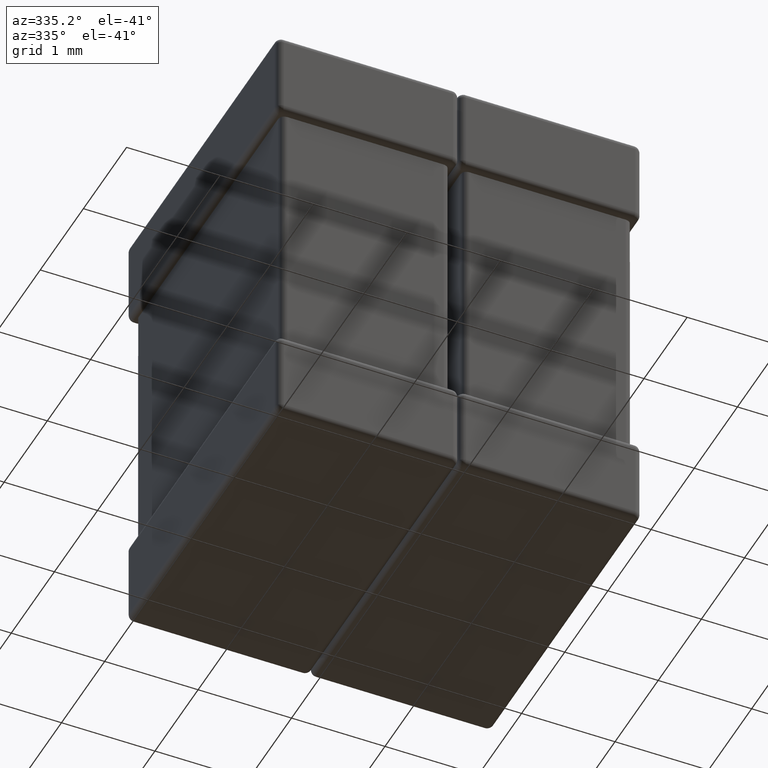
[diagram: clean part render]
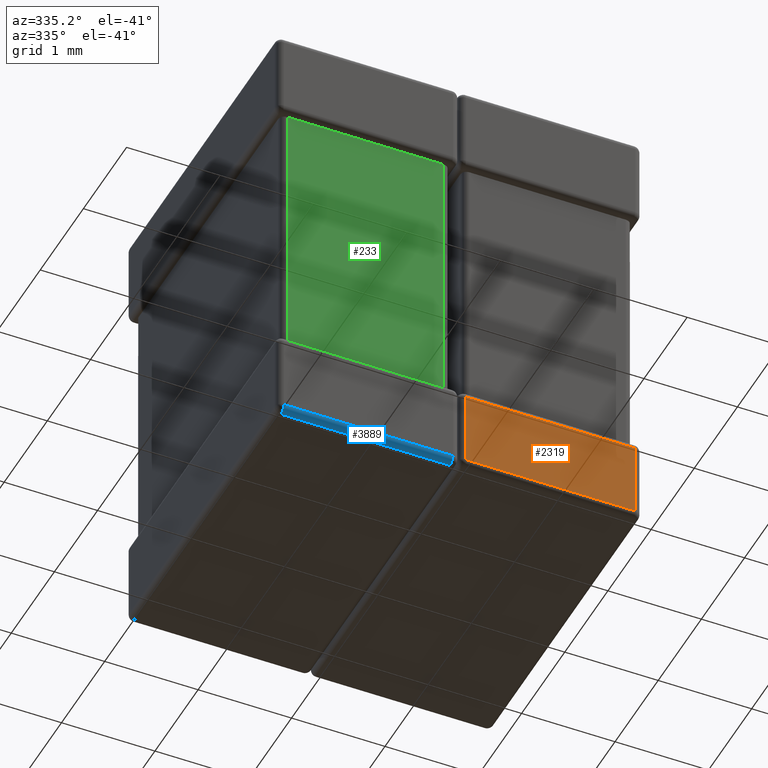
[diagram: same view with three faces highlighted in distinct colors, each labeled with its STEP entity id]
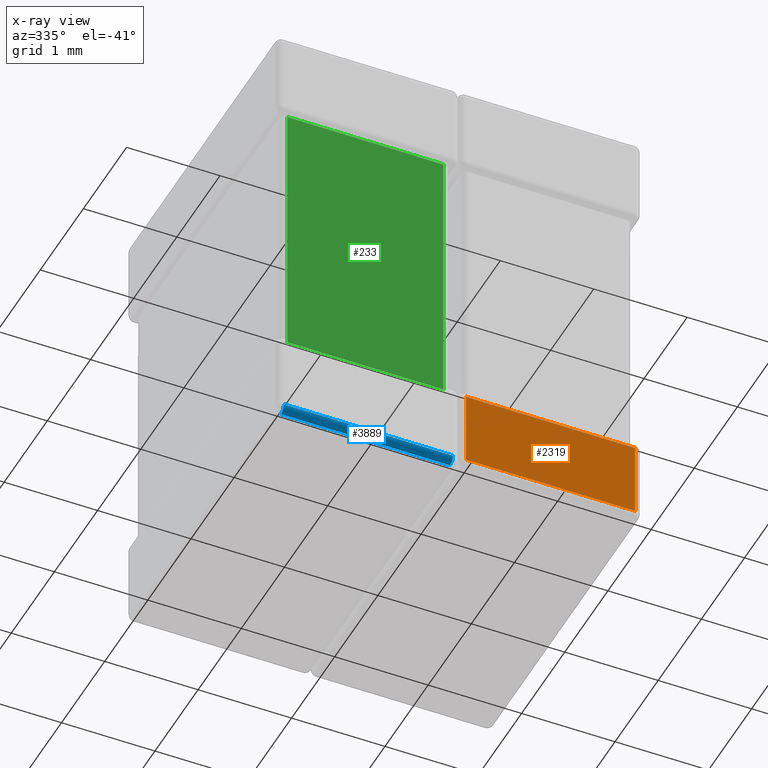
[diagram: x-ray of the same camera — body ghosted, the three highlighted faces saturated]
A machine part, auxiliary view with three faces highlighted in distinct colors.
The next image is the same camera in x-ray (body ghosted, the three faces saturated) — at least one of them is partly hidden behind the body in this view.
Their STEP definitions:

[orange] entity #2319 — the highlighted planar face has unit normal (0, -1, 0).
#8 = CARTESIAN_POINT ( 'NONE',  ( 2.020000000000000018, 2.414409817907970416E-16, -4.799999999999999822 ) ) ;
#726 = LINE ( 'NONE', #776, #5882 ) ;
#776 = CARTESIAN_POINT ( 'NONE',  ( 1.949999999999999956, 2.414409817907970416E-16, -4.729999999999999538 ) ) ;
#990 = ORIENTED_EDGE ( 'NONE', *, *, #4776, .T. ) ;
#1700 = VERTEX_POINT ( 'NONE', #3797 ) ;
#1996 = VECTOR ( 'NONE', #8103, 1000.000000000000000 ) ;
#2000 = DIRECTION ( 'NONE',  ( -1.000000000000000000, 0.000000000000000000, 3.070679120515356373E-30 ) ) ;
#2157 = ORIENTED_EDGE ( 'NONE', *, *, #3173, .T. ) ;
#2295 = VERTEX_POINT ( 'NONE', #2994 ) ;
#2319 = ADVANCED_FACE ( 'NONE', ( #5745 ), #8546, .T. ) ;
#2333 = EDGE_CURVE ( 'NONE', #2295, #8065, #2490, .T. ) ;
#2490 = LINE ( 'NONE', #3996, #7548 ) ;
#2994 = CARTESIAN_POINT ( 'NONE',  ( 3.829999999999999627, 2.414409817907970416E-16, -3.920000000000041673 ) ) ;
#3173 = EDGE_CURVE ( 'NONE', #8065, #1700, #5979, .T. ) ;
#3275 = CARTESIAN_POINT ( 'NONE',  ( 1.949999999999999956, 2.414409817907970416E-16, -4.799999999999999822 ) ) ;
#3330 = CARTESIAN_POINT ( 'NONE',  ( 3.829999999999999627, 2.414409817907970416E-16, -4.799999999999999822 ) ) ;
#3797 = CARTESIAN_POINT ( 'NONE',  ( 2.020000000000000018, 2.414409817907970416E-16, -4.729999999999999538 ) ) ;
#3996 = CARTESIAN_POINT ( 'NONE',  ( 1.949999999999999956, 2.414409817907970416E-16, -3.920000000000041673 ) ) ;
#4036 = VERTEX_POINT ( 'NONE', #5339 ) ;
#4539 = VECTOR ( 'NONE', #8044, 1000.000000000000000 ) ;
#4667 = DIRECTION ( 'NONE',  ( 0.000000000000000000, -1.000000000000000000, 0.000000000000000000 ) ) ;
#4776 = EDGE_CURVE ( 'NONE', #4036, #2295, #5388, .T. ) ;
#5181 = EDGE_CURVE ( 'NONE', #1700, #4036, #726, .T. ) ;
#5339 = CARTESIAN_POINT ( 'NONE',  ( 3.829999999999999627, 2.414409817907970416E-16, -4.729999999999999538 ) ) ;
#5388 = LINE ( 'NONE', #3330, #1996 ) ;
#5420 = DIRECTION ( 'NONE',  ( 0.000000000000000000, -0.000000000000000000, -1.000000000000000000 ) ) ;
#5745 = FACE_OUTER_BOUND ( 'NONE', #6662, .T. ) ;
#5882 = VECTOR ( 'NONE', #6125, 1000.000000000000000 ) ;
#5979 = LINE ( 'NONE', #8, #4539 ) ;
#6123 = AXIS2_PLACEMENT_3D ( 'NONE', #3275, #4667, #5420 ) ;
#6125 = DIRECTION ( 'NONE',  ( 1.000000000000000000, 0.000000000000000000, 0.000000000000000000 ) ) ;
#6662 = EDGE_LOOP ( 'NONE', ( #990, #8338, #2157, #6725 ) ) ;
#6725 = ORIENTED_EDGE ( 'NONE', *, *, #5181, .T. ) ;
#6789 = CARTESIAN_POINT ( 'NONE',  ( 2.020000000000000018, 2.414409817907970416E-16, -3.920000000000041673 ) ) ;
#7548 = VECTOR ( 'NONE', #2000, 1000.000000000000000 ) ;
#8044 = DIRECTION ( 'NONE',  ( -0.000000000000000000, -0.000000000000000000, -1.000000000000000000 ) ) ;
#8065 = VERTEX_POINT ( 'NONE', #6789 ) ;
#8103 = DIRECTION ( 'NONE',  ( 0.000000000000000000, 0.000000000000000000, 1.000000000000000000 ) ) ;
#8338 = ORIENTED_EDGE ( 'NONE', *, *, #2333, .T. ) ;
#8546 = PLANE ( 'NONE',  #6123 ) ;

[blue] entity #3889 — the highlighted cylindrical surface (edge-blend (fillet) strip) has radius 0.07 mm, axis along (1, 0, 0).
#72 = DIRECTION ( 'NONE',  ( 1.000000000000000000, 0.000000000000000000, 0.000000000000000000 ) ) ;
#418 = VECTOR ( 'NONE', #4256, 1000.000000000000000 ) ;
#704 = CIRCLE ( 'NONE', #6967, 0.06999999999999975686 ) ;
#785 = CARTESIAN_POINT ( 'NONE',  ( 0.06999999999999999278, 0.000000000000000000, -4.729999999999999538 ) ) ;
#1442 = LINE ( 'NONE', #5619, #418 ) ;
#1640 = CARTESIAN_POINT ( 'NONE',  ( 0.06999999999999999278, 0.07000000000000000666, -4.729999999999999538 ) ) ;
#1657 = VERTEX_POINT ( 'NONE', #2309 ) ;
#1736 = CARTESIAN_POINT ( 'NONE',  ( 1.879999999999999671, 0.000000000000000000, -4.729999999999999538 ) ) ;
#1910 = VERTEX_POINT ( 'NONE', #3610 ) ;
#2309 = CARTESIAN_POINT ( 'NONE',  ( 1.879999999999999671, 0.07000000000000000666, -4.799999999999999822 ) ) ;
#2405 = AXIS2_PLACEMENT_3D ( 'NONE', #4903, #7695, #4182 ) ;
#2726 = EDGE_LOOP ( 'NONE', ( #6706, #5343, #7987, #6561 ) ) ;
#2974 = DIRECTION ( 'NONE',  ( 1.000000000000000000, 0.000000000000000000, 0.000000000000000000 ) ) ;
#2996 = AXIS2_PLACEMENT_3D ( 'NONE', #1640, #3073, #3723 ) ;
#3073 = DIRECTION ( 'NONE',  ( -1.000000000000000000, -0.000000000000000000, -0.000000000000000000 ) ) ;
#3450 = LINE ( 'NONE', #6175, #7422 ) ;
#3610 = CARTESIAN_POINT ( 'NONE',  ( 0.06999999999999999278, 0.07000000000000000666, -4.799999999999999822 ) ) ;
#3659 = CARTESIAN_POINT ( 'NONE',  ( 1.879999999999999671, 0.07000000000000000666, -4.729999999999999538 ) ) ;
#3723 = DIRECTION ( 'NONE',  ( 0.000000000000000000, 0.000000000000000000, 1.000000000000000000 ) ) ;
#3886 = EDGE_CURVE ( 'NONE', #1657, #1910, #1442, .T. ) ;
#3889 = ADVANCED_FACE ( 'NONE', ( #6319 ), #6268, .T. ) ;
#4160 = EDGE_CURVE ( 'NONE', #8461, #6246, #3450, .T. ) ;
#4182 = DIRECTION ( 'NONE',  ( 0.000000000000000000, 0.000000000000000000, -1.000000000000000000 ) ) ;
#4256 = DIRECTION ( 'NONE',  ( -1.000000000000000000, -0.000000000000000000, -0.000000000000000000 ) ) ;
#4903 = CARTESIAN_POINT ( 'NONE',  ( 0.000000000000000000, 0.07000000000000000666, -4.729999999999999538 ) ) ;
#5029 = EDGE_CURVE ( 'NONE', #1910, #8461, #8155, .T. ) ;
#5343 = ORIENTED_EDGE ( 'NONE', *, *, #3886, .F. ) ;
#5619 = CARTESIAN_POINT ( 'NONE',  ( 0.000000000000000000, 0.07000000000000000666, -4.799999999999999822 ) ) ;
#6175 = CARTESIAN_POINT ( 'NONE',  ( 0.000000000000000000, 0.000000000000000000, -4.729999999999999538 ) ) ;
#6246 = VERTEX_POINT ( 'NONE', #1736 ) ;
#6268 = CYLINDRICAL_SURFACE ( 'NONE', #2405, 0.06999999999999975686 ) ;
#6319 = FACE_OUTER_BOUND ( 'NONE', #2726, .T. ) ;
#6556 = DIRECTION ( 'NONE',  ( 0.000000000000000000, 0.000000000000000000, -1.000000000000000000 ) ) ;
#6561 = ORIENTED_EDGE ( 'NONE', *, *, #4160, .F. ) ;
#6706 = ORIENTED_EDGE ( 'NONE', *, *, #5029, .F. ) ;
#6967 = AXIS2_PLACEMENT_3D ( 'NONE', #3659, #2974, #6556 ) ;
#7422 = VECTOR ( 'NONE', #72, 1000.000000000000000 ) ;
#7695 = DIRECTION ( 'NONE',  ( 1.000000000000000000, 0.000000000000000000, 0.000000000000000000 ) ) ;
#7987 = ORIENTED_EDGE ( 'NONE', *, *, #8805, .F. ) ;
#8155 = CIRCLE ( 'NONE', #2996, 0.06999999999999975686 ) ;
#8461 = VERTEX_POINT ( 'NONE', #785 ) ;
#8805 = EDGE_CURVE ( 'NONE', #6246, #1657, #704, .T. ) ;

[green] entity #233 — the highlighted planar face has unit normal (-0, -1, 0).
#94 = LINE ( 'NONE', #7483, #3187 ) ;
#122 = DIRECTION ( 'NONE',  ( 1.000000000000000000, -2.478176394252582620E-16, 0.000000000000000000 ) ) ;
#233 = ADVANCED_FACE ( 'NONE', ( #6885 ), #4185, .T. ) ;
#293 = VECTOR ( 'NONE', #2545, 1000.000000000000000 ) ;
#404 = CARTESIAN_POINT ( 'NONE',  ( 0.1399999999999994027, 0.07000000000000020095, -0.9500000000000001776 ) ) ;
#606 = ORIENTED_EDGE ( 'NONE', *, *, #5366, .F. ) ;
#789 = CARTESIAN_POINT ( 'NONE',  ( -2.385244779468109755E-15, 0.07000000000000024258, -0.9500000000000001776 ) ) ;
#909 = ORIENTED_EDGE ( 'NONE', *, *, #7978, .T. ) ;
#1307 = AXIS2_PLACEMENT_3D ( 'NONE', #789, #7513, #122 ) ;
#1493 = VERTEX_POINT ( 'NONE', #8059 ) ;
#1781 = CARTESIAN_POINT ( 'NONE',  ( -2.385244779468109755E-15, 0.07000000000000024258, -3.850000000000000089 ) ) ;
#1824 = LINE ( 'NONE', #1781, #293 ) ;
#2149 = VECTOR ( 'NONE', #8809, 1000.000000000000000 ) ;
#2509 = DIRECTION ( 'NONE',  ( 1.495451272393799296E-16, -3.705992042001302540E-32, -1.000000000000000000 ) ) ;
#2545 = DIRECTION ( 'NONE',  ( 1.000000000000000000, -2.478176394252582620E-16, -0.000000000000000000 ) ) ;
#2771 = EDGE_CURVE ( 'NONE', #3960, #3181, #4639, .T. ) ;
#3124 = CARTESIAN_POINT ( 'NONE',  ( 1.810000000000000053, 0.06999999999999978462, -3.850000000000000089 ) ) ;
#3181 = VERTEX_POINT ( 'NONE', #4106 ) ;
#3187 = VECTOR ( 'NONE', #6719, 1000.000000000000000 ) ;
#3551 = VECTOR ( 'NONE', #2509, 1000.000000000000000 ) ;
#3936 = CARTESIAN_POINT ( 'NONE',  ( -2.385244779468109755E-15, 0.07000000000000024258, -0.9500000000000001776 ) ) ;
#3960 = VERTEX_POINT ( 'NONE', #404 ) ;
#3972 = VERTEX_POINT ( 'NONE', #3124 ) ;
#4100 = ORIENTED_EDGE ( 'NONE', *, *, #6769, .T. ) ;
#4106 = CARTESIAN_POINT ( 'NONE',  ( 0.1399999999999998190, 0.07000000000000020095, -3.850000000000000089 ) ) ;
#4185 = PLANE ( 'NONE',  #1307 ) ;
#4639 = LINE ( 'NONE', #6718, #3551 ) ;
#5366 = EDGE_CURVE ( 'NONE', #3960, #1493, #6560, .T. ) ;
#5657 = EDGE_LOOP ( 'NONE', ( #909, #4100, #606, #7777 ) ) ;
#6560 = LINE ( 'NONE', #3936, #2149 ) ;
#6718 = CARTESIAN_POINT ( 'NONE',  ( 0.1399999999999994027, 0.07000000000000020095, -0.9500000000000001776 ) ) ;
#6719 = DIRECTION ( 'NONE',  ( 1.495451272393799296E-16, -3.705992042001302540E-32, 1.000000000000000000 ) ) ;
#6769 = EDGE_CURVE ( 'NONE', #3972, #1493, #94, .T. ) ;
#6885 = FACE_OUTER_BOUND ( 'NONE', #5657, .T. ) ;
#7483 = CARTESIAN_POINT ( 'NONE',  ( 1.810000000000000497, 0.06999999999999978462, -0.9500000000000001776 ) ) ;
#7513 = DIRECTION ( 'NONE',  ( -2.478176394252582620E-16, -1.000000000000000000, 0.000000000000000000 ) ) ;
#7777 = ORIENTED_EDGE ( 'NONE', *, *, #2771, .T. ) ;
#7978 = EDGE_CURVE ( 'NONE', #3181, #3972, #1824, .T. ) ;
#8059 = CARTESIAN_POINT ( 'NONE',  ( 1.810000000000000497, 0.06999999999999978462, -0.9500000000000001776 ) ) ;
#8809 = DIRECTION ( 'NONE',  ( 1.000000000000000000, -2.478176394252582620E-16, -0.000000000000000000 ) ) ;